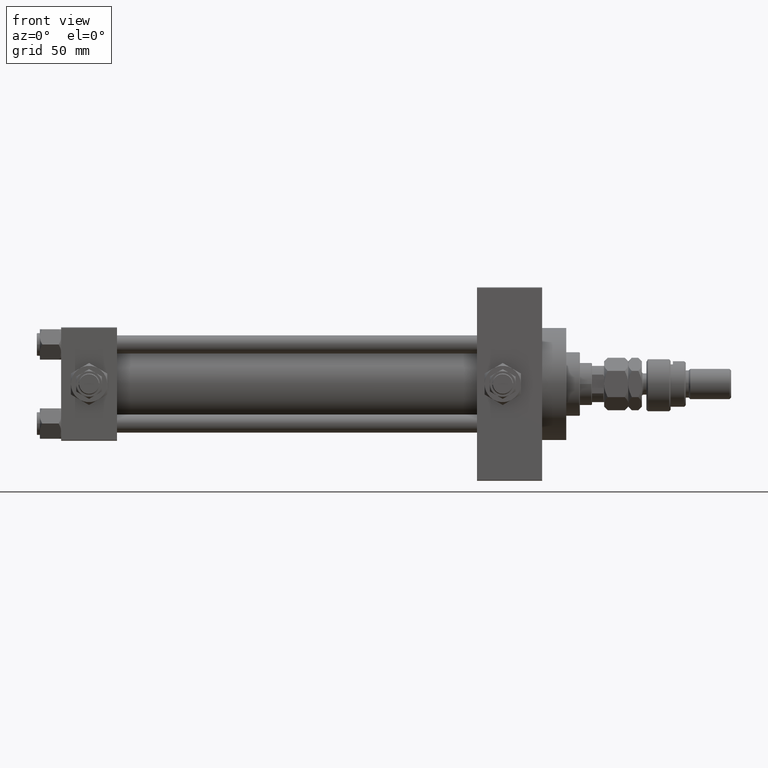
[diagram: clean part render]
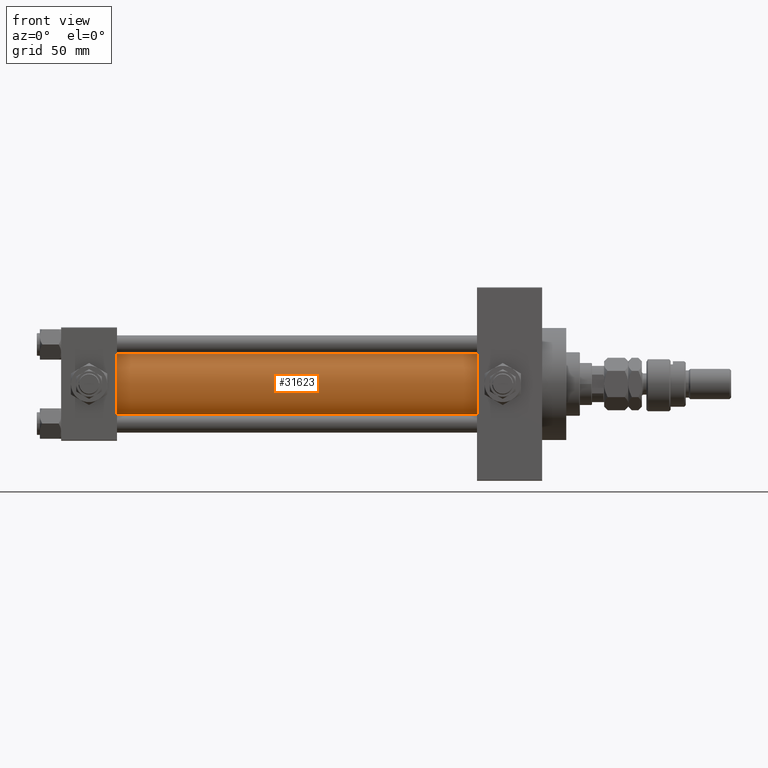
[diagram: same view with one face highlighted and labeled with its STEP entity id]
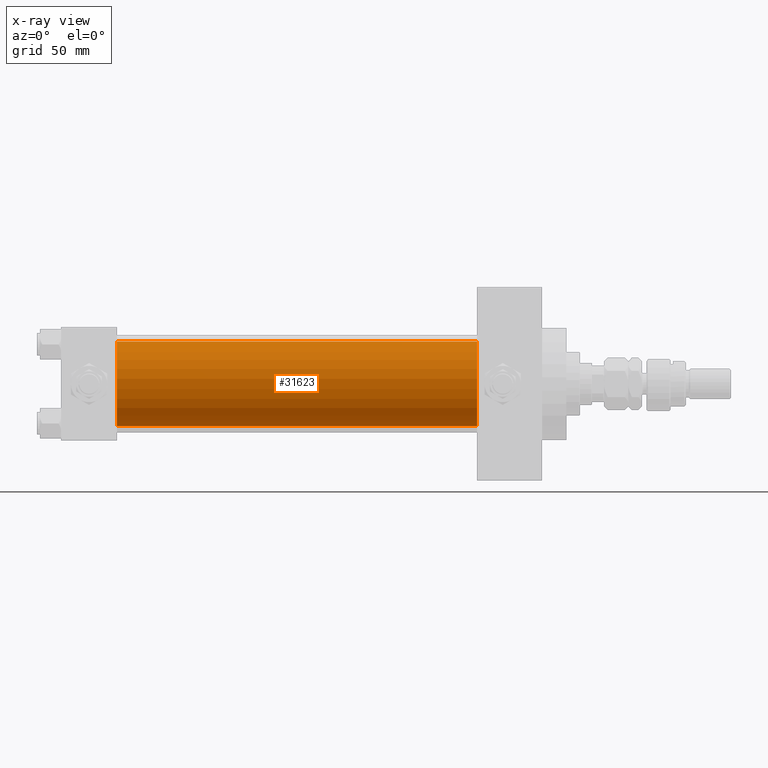
[diagram: x-ray of the same camera — body ghosted, the highlighted face saturated]
A machine part, front view. The second image highlights one B-rep face of the part: STEP entity #31623.
The next image is the same camera in x-ray: the body ghosted, the highlighted face saturated — about 0% of this face is hidden behind the body in this view.
In plain terms, the highlighted cylindrical surface (partial cylindrical patch) has radius 28 mm, axis along (-1, -0, -0).
Its self-contained STEP definition (entity closure, byte-faithful):
#73 = EDGE_LOOP ( 'NONE', ( #27619, #35433, #35219, #26319 ) ) ;
#1458 = VERTEX_POINT ( 'NONE', #49305 ) ;
#4632 = CARTESIAN_POINT ( 'NONE',  ( 37.00000000000000711, -2.602085213965210642E-15, 0.000000000000000000 ) ) ;
#10466 = DIRECTION ( 'NONE',  ( 0.000000000000000000, 0.000000000000000000, 1.000000000000000000 ) ) ;
#10512 = DIRECTION ( 'NONE',  ( -1.000000000000000000, -0.000000000000000000, -0.000000000000000000 ) ) ;
#13239 = CARTESIAN_POINT ( 'NONE',  ( 274.9999999999999432, 8.269258236473784371E-16, -28.00000000000000000 ) ) ;
#14417 = DIRECTION ( 'NONE',  ( -1.000000000000000000, -0.000000000000000000, -0.000000000000000000 ) ) ;
#14668 = FACE_OUTER_BOUND ( 'NONE', #73, .T. ) ;
#15758 = EDGE_CURVE ( 'NONE', #1458, #35956, #25119, .T. ) ;
#18370 = DIRECTION ( 'NONE',  ( 1.000000000000000000, 0.000000000000000000, 0.000000000000000000 ) ) ;
#20770 = VERTEX_POINT ( 'NONE', #33499 ) ;
#21552 = EDGE_CURVE ( 'NONE', #35956, #45026, #45397, .T. ) ;
#22444 = DIRECTION ( 'NONE',  ( 0.000000000000000000, 0.000000000000000000, 1.000000000000000000 ) ) ;
#25119 = CIRCLE ( 'NONE', #33544, 28.00000000000000000 ) ;
#26319 = ORIENTED_EDGE ( 'NONE', *, *, #30140, .T. ) ;
#26837 = LINE ( 'NONE', #46636, #46198 ) ;
#27335 = AXIS2_PLACEMENT_3D ( 'NONE', #34427, #14417, #10466 ) ;
#27619 = ORIENTED_EDGE ( 'NONE', *, *, #21552, .F. ) ;
#28422 = CARTESIAN_POINT ( 'NONE',  ( 274.9999999999999432, 8.269258236473784371E-16, -28.00000000000000000 ) ) ;
#30140 = EDGE_CURVE ( 'NONE', #20770, #45026, #32289, .T. ) ;
#31623 = ADVANCED_FACE ( 'NONE', ( #14668 ), #38388, .T. ) ;
#32289 = CIRCLE ( 'NONE', #50873, 28.00000000000000000 ) ;
#33499 = CARTESIAN_POINT ( 'NONE',  ( 37.00000000000000711, -2.602085213965210642E-15, 28.00000000000000000 ) ) ;
#33544 = AXIS2_PLACEMENT_3D ( 'NONE', #38920, #18370, #51323 ) ;
#34427 = CARTESIAN_POINT ( 'NONE',  ( 274.9999999999999432, -2.602085213965210642E-15, 0.000000000000000000 ) ) ;
#35219 = ORIENTED_EDGE ( 'NONE', *, *, #44224, .T. ) ;
#35433 = ORIENTED_EDGE ( 'NONE', *, *, #15758, .F. ) ;
#35956 = VERTEX_POINT ( 'NONE', #28422 ) ;
#36405 = DIRECTION ( 'NONE',  ( -1.000000000000000000, -0.000000000000000000, -0.000000000000000000 ) ) ;
#38388 = CYLINDRICAL_SURFACE ( 'NONE', #27335, 28.00000000000000000 ) ;
#38920 = CARTESIAN_POINT ( 'NONE',  ( 274.9999999999999432, -2.602085213965210642E-15, 0.000000000000000000 ) ) ;
#42931 = VECTOR ( 'NONE', #36405, 1000.000000000000000 ) ;
#44224 = EDGE_CURVE ( 'NONE', #1458, #20770, #26837, .T. ) ;
#45026 = VERTEX_POINT ( 'NONE', #50278 ) ;
#45397 = LINE ( 'NONE', #13239, #42931 ) ;
#46198 = VECTOR ( 'NONE', #10512, 1000.000000000000000 ) ;
#46636 = CARTESIAN_POINT ( 'NONE',  ( 274.9999999999999432, -2.602085213965210642E-15, 28.00000000000000000 ) ) ;
#49305 = CARTESIAN_POINT ( 'NONE',  ( 274.9999999999999432, -2.602085213965210642E-15, 28.00000000000000000 ) ) ;
#50278 = CARTESIAN_POINT ( 'NONE',  ( 37.00000000000000711, 8.269258236473784371E-16, -28.00000000000000000 ) ) ;
#50666 = DIRECTION ( 'NONE',  ( 1.000000000000000000, -0.000000000000000000, 0.000000000000000000 ) ) ;
#50873 = AXIS2_PLACEMENT_3D ( 'NONE', #4632, #50666, #22444 ) ;
#51323 = DIRECTION ( 'NONE',  ( 0.000000000000000000, 0.000000000000000000, -1.000000000000000000 ) ) ;